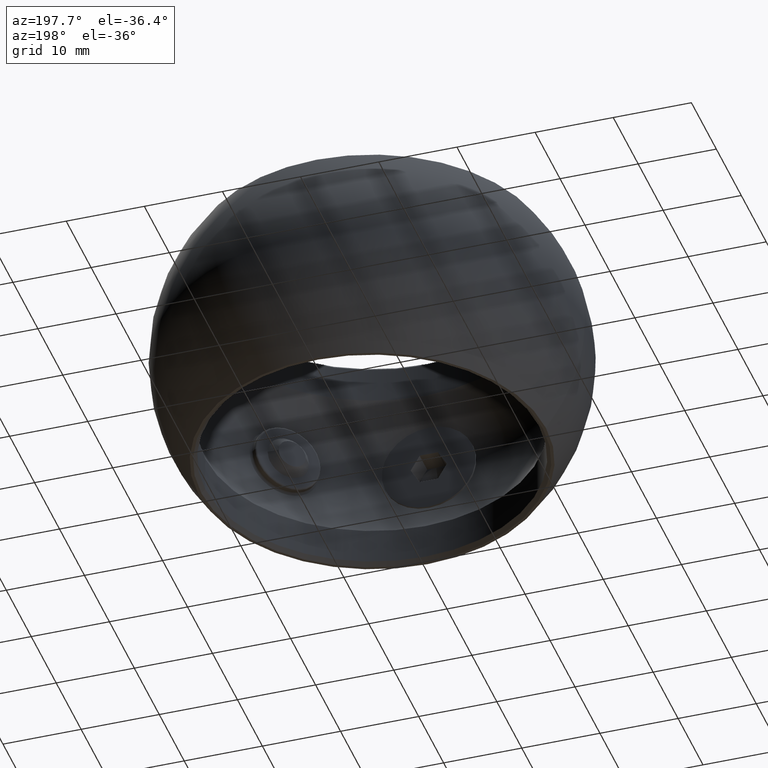
[diagram: clean part render]
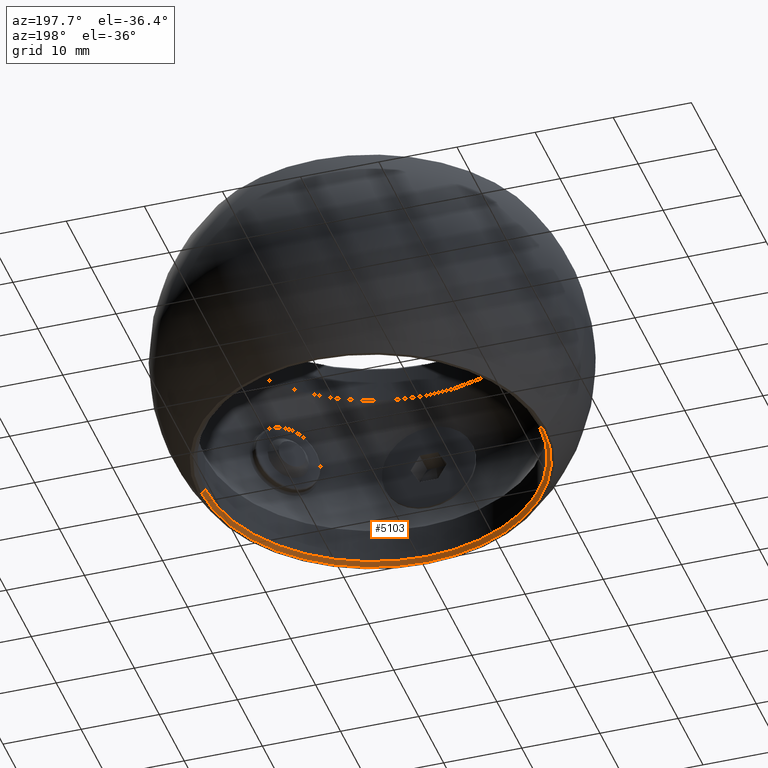
[diagram: same view with one face highlighted and labeled with its STEP entity id]
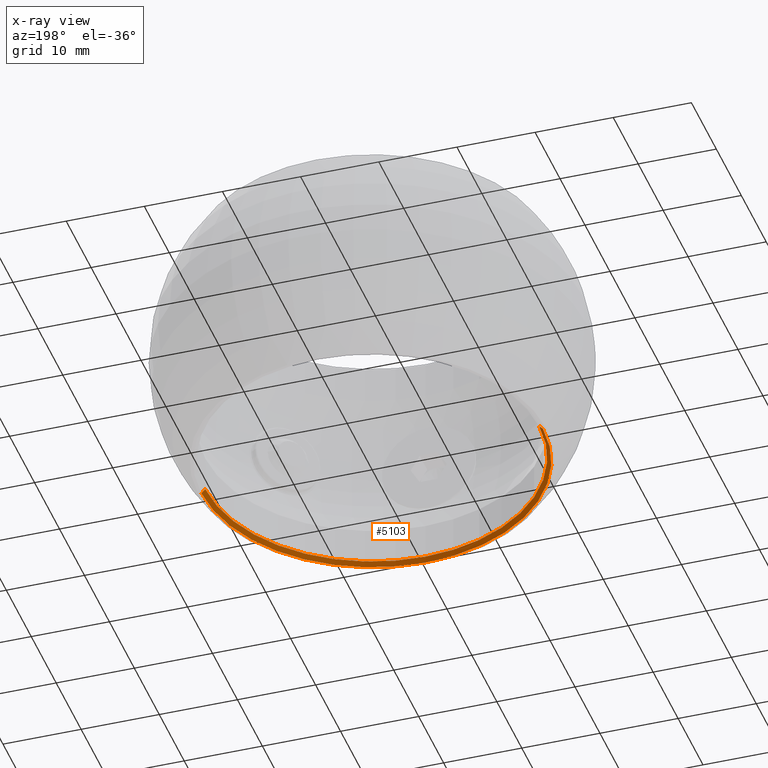
[diagram: x-ray of the same camera — body ghosted, the highlighted face saturated]
A machine part, auxiliary view. The second image highlights one B-rep face of the part: STEP entity #5103.
The next image is the same camera in x-ray: the body ghosted, the highlighted face saturated — about 0% of this face is hidden behind the body in this view.
In plain terms, the highlighted conical surface has half-angle 45 deg.
Its self-contained STEP definition (entity closure, byte-faithful):
#760 = CONICAL_SURFACE ( 'NONE', #19389, 21.35000000000000142, 0.7853981633974482790 ) ;
#1208 = CARTESIAN_POINT ( 'NONE',  ( -21.85000000000000142, 0.000000000000000000, -15.00000000000000000 ) ) ;
#2464 = CARTESIAN_POINT ( 'NONE',  ( 0.000000000000000000, 0.000000000000000000, -14.49999999999999822 ) ) ;
#3250 = DIRECTION ( 'NONE',  ( -0.7071067811865474617, 0.000000000000000000, -0.7071067811865474617 ) ) ;
#3345 = EDGE_CURVE ( 'NONE', #13465, #14604, #4888, .T. ) ;
#3371 = VECTOR ( 'NONE', #3250, 1000.000000000000114 ) ;
#3375 = VECTOR ( 'NONE', #6698, 1000.000000000000114 ) ;
#4450 = CARTESIAN_POINT ( 'NONE',  ( 0.000000000000000000, 0.000000000000000000, -15.00000000000000000 ) ) ;
#4542 = DIRECTION ( 'NONE',  ( -1.000000000000000000, 0.000000000000000000, 0.000000000000000000 ) ) ;
#4786 = ORIENTED_EDGE ( 'NONE', *, *, #3345, .F. ) ;
#4888 = LINE ( 'NONE', #11208, #3371 ) ;
#5103 = ADVANCED_FACE ( 'NONE', ( #17715 ), #760, .F. ) ;
#5332 = ORIENTED_EDGE ( 'NONE', *, *, #19325, .F. ) ;
#6516 = VERTEX_POINT ( 'NONE', #11903 ) ;
#6672 = CARTESIAN_POINT ( 'NONE',  ( -21.35000000000000142, 0.000000000000000000, -14.49999999999999822 ) ) ;
#6698 = DIRECTION ( 'NONE',  ( 0.7071067811865474617, 8.659560562354932858E-17, -0.7071067811865474617 ) ) ;
#6982 = CIRCLE ( 'NONE', #7338, 21.35000000000000142 ) ;
#7338 = AXIS2_PLACEMENT_3D ( 'NONE', #2464, #8962, #15407 ) ;
#7918 = DIRECTION ( 'NONE',  ( 0.000000000000000000, 0.000000000000000000, -1.000000000000000000 ) ) ;
#8962 = DIRECTION ( 'NONE',  ( -0.000000000000000000, -0.000000000000000000, 1.000000000000000000 ) ) ;
#9627 = EDGE_CURVE ( 'NONE', #13465, #19145, #6982, .T. ) ;
#10160 = CIRCLE ( 'NONE', #14724, 21.85000000000000142 ) ;
#10568 = ORIENTED_EDGE ( 'NONE', *, *, #15079, .T. ) ;
#10903 = DIRECTION ( 'NONE',  ( -0.000000000000000000, -0.000000000000000000, 1.000000000000000000 ) ) ;
#10989 = LINE ( 'NONE', #11482, #3375 ) ;
#11208 = CARTESIAN_POINT ( 'NONE',  ( -21.35000000000000142, 0.000000000000000000, -14.49999999999999822 ) ) ;
#11482 = CARTESIAN_POINT ( 'NONE',  ( 21.35000000000000142, 2.614620916179599200E-15, -14.49999999999999822 ) ) ;
#11903 = CARTESIAN_POINT ( 'NONE',  ( 21.85000000000000142, 2.675853256136967168E-15, -15.00000000000000000 ) ) ;
#13100 = ORIENTED_EDGE ( 'NONE', *, *, #9627, .T. ) ;
#13465 = VERTEX_POINT ( 'NONE', #6672 ) ;
#14604 = VERTEX_POINT ( 'NONE', #1208 ) ;
#14724 = AXIS2_PLACEMENT_3D ( 'NONE', #4450, #10903, #18869 ) ;
#15079 = EDGE_CURVE ( 'NONE', #19145, #6516, #10989, .T. ) ;
#15407 = DIRECTION ( 'NONE',  ( 1.000000000000000000, 0.000000000000000000, 0.000000000000000000 ) ) ;
#16608 = CARTESIAN_POINT ( 'NONE',  ( 21.35000000000000142, 2.645237086158282987E-15, -14.49999999999999822 ) ) ;
#17622 = CARTESIAN_POINT ( 'NONE',  ( 0.000000000000000000, 0.000000000000000000, -14.49999999999999822 ) ) ;
#17715 = FACE_OUTER_BOUND ( 'NONE', #18522, .T. ) ;
#18522 = EDGE_LOOP ( 'NONE', ( #13100, #10568, #5332, #4786 ) ) ;
#18869 = DIRECTION ( 'NONE',  ( 1.000000000000000000, 0.000000000000000000, 0.000000000000000000 ) ) ;
#19145 = VERTEX_POINT ( 'NONE', #16608 ) ;
#19325 = EDGE_CURVE ( 'NONE', #14604, #6516, #10160, .T. ) ;
#19389 = AXIS2_PLACEMENT_3D ( 'NONE', #17622, #7918, #4542 ) ;